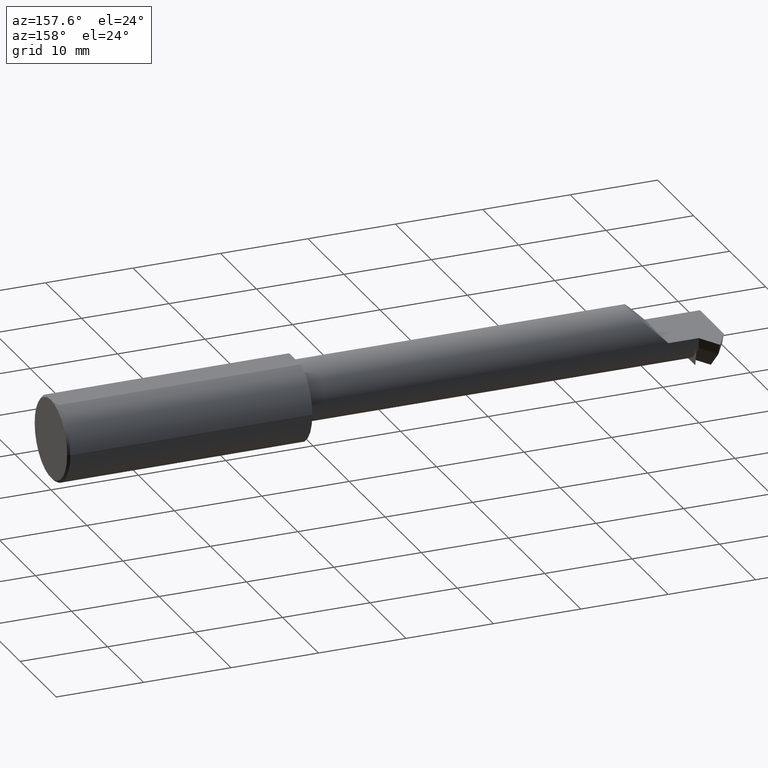
[diagram: clean part render]
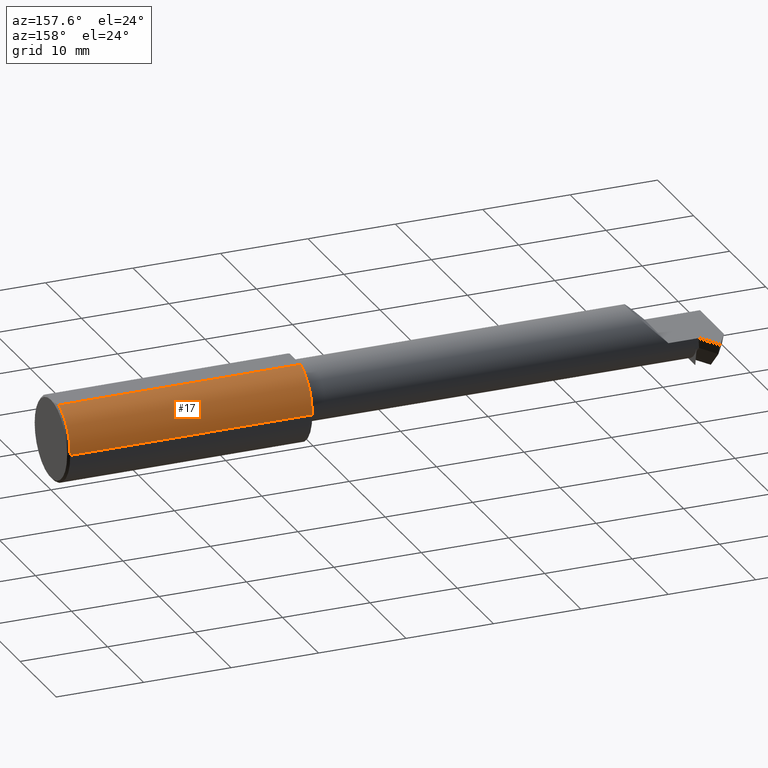
[diagram: same view with one face highlighted and labeled with its STEP entity id]
A machine part, auxiliary view. The second image highlights one B-rep face of the part: STEP entity #17.
In plain terms, the highlighted cylindrical surface (partial cylindrical patch) has radius 4.7587 mm, axis along (1, 0, -0).
Its self-contained STEP definition (entity closure, byte-faithful):
#8 = CARTESIAN_POINT ( 'NONE',  ( -1.100000000000000311, 1.714505518806293898E-16, 0.000000000000000000 ) ) ;
#17 = ADVANCED_FACE ( 'NONE', ( #435 ), #301, .T. ) ;
#66 = CARTESIAN_POINT ( 'NONE',  ( -0.009999999999999620304, 0.06039039658753714984, 0.1773500000000000354 ) ) ;
#73 = AXIS2_PLACEMENT_3D ( 'NONE', #253, #588, #522 ) ;
#78 = ORIENTED_EDGE ( 'NONE', *, *, #717, .F. ) ;
#105 = VECTOR ( 'NONE', #653, 39.37007874015748143 ) ;
#149 = VERTEX_POINT ( 'NONE', #673 ) ;
#184 = LINE ( 'NONE', #442, #105 ) ;
#210 = LINE ( 'NONE', #610, #866 ) ;
#216 = DIRECTION ( 'NONE',  ( 0.000000000000000000, -1.000000000000000000, 0.000000000000000000 ) ) ;
#228 = DIRECTION ( 'NONE',  ( 0.000000000000000000, 1.000000000000000000, 0.000000000000000000 ) ) ;
#241 = EDGE_CURVE ( 'NONE', #756, #725, #382, .T. ) ;
#253 = CARTESIAN_POINT ( 'NONE',  ( -0.009999999999999620304, 3.049370529876909883E-16, 0.000000000000000000 ) ) ;
#275 = DIRECTION ( 'NONE',  ( 1.000000000000000000, 9.422009876951564852E-18, 0.000000000000000000 ) ) ;
#301 = CYLINDRICAL_SURFACE ( 'NONE', #516, 0.1873499999999999888 ) ;
#325 = EDGE_LOOP ( 'NONE', ( #78, #826, #675, #410 ) ) ;
#326 = EDGE_CURVE ( 'NONE', #756, #149, #210, .T. ) ;
#382 = CIRCLE ( 'NONE', #73, 0.1873499999999999888 ) ;
#404 = CARTESIAN_POINT ( 'NONE',  ( -1.100000000000000311, 0.1873500000000001275, 0.000000000000000000 ) ) ;
#410 = ORIENTED_EDGE ( 'NONE', *, *, #241, .T. ) ;
#435 = FACE_OUTER_BOUND ( 'NONE', #325, .T. ) ;
#442 = CARTESIAN_POINT ( 'NONE',  ( -3.000000000000000444, 0.1873499999999999055, 0.000000000000000000 ) ) ;
#472 = DIRECTION ( 'NONE',  ( -1.000000000000000000, -1.224646799147352961E-16, 0.000000000000000000 ) ) ;
#493 = CIRCLE ( 'NONE', #839, 0.1873499999999999888 ) ;
#516 = AXIS2_PLACEMENT_3D ( 'NONE', #576, #838, #228 ) ;
#522 = DIRECTION ( 'NONE',  ( -1.253099476677462608E-16, 1.000000000000000000, -8.881784197001252323E-16 ) ) ;
#548 = EDGE_CURVE ( 'NONE', #769, #149, #493, .T. ) ;
#576 = CARTESIAN_POINT ( 'NONE',  ( -3.000000000000000444, -6.123233995736767268E-17, 0.000000000000000000 ) ) ;
#588 = DIRECTION ( 'NONE',  ( -1.000000000000000000, -1.224646799147313518E-16, 0.000000000000000000 ) ) ;
#610 = CARTESIAN_POINT ( 'NONE',  ( -3.000000000000000444, 0.06039039658753678902, 0.1773500000000000354 ) ) ;
#653 = DIRECTION ( 'NONE',  ( 1.000000000000000000, 1.224646799147352961E-16, -0.000000000000000000 ) ) ;
#673 = CARTESIAN_POINT ( 'NONE',  ( -1.100000000000000311, 0.06039039658753714290, 0.1773500000000000909 ) ) ;
#675 = ORIENTED_EDGE ( 'NONE', *, *, #326, .F. ) ;
#717 = EDGE_CURVE ( 'NONE', #769, #725, #184, .T. ) ;
#725 = VERTEX_POINT ( 'NONE', #729 ) ;
#729 = CARTESIAN_POINT ( 'NONE',  ( -0.009999999999999642855, 0.1873500000000002941, 0.000000000000000000 ) ) ;
#756 = VERTEX_POINT ( 'NONE', #66 ) ;
#769 = VERTEX_POINT ( 'NONE', #404 ) ;
#826 = ORIENTED_EDGE ( 'NONE', *, *, #548, .T. ) ;
#838 = DIRECTION ( 'NONE',  ( 1.000000000000000000, 1.224646799147352961E-16, -0.000000000000000000 ) ) ;
#839 = AXIS2_PLACEMENT_3D ( 'NONE', #8, #275, #216 ) ;
#866 = VECTOR ( 'NONE', #472, 39.37007874015748143 ) ;